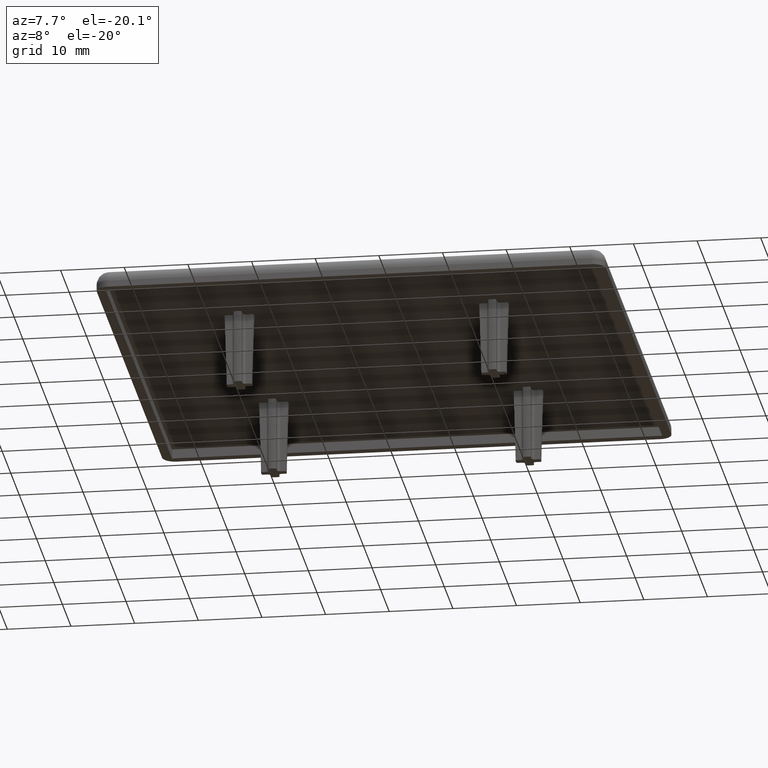
[diagram: clean part render]
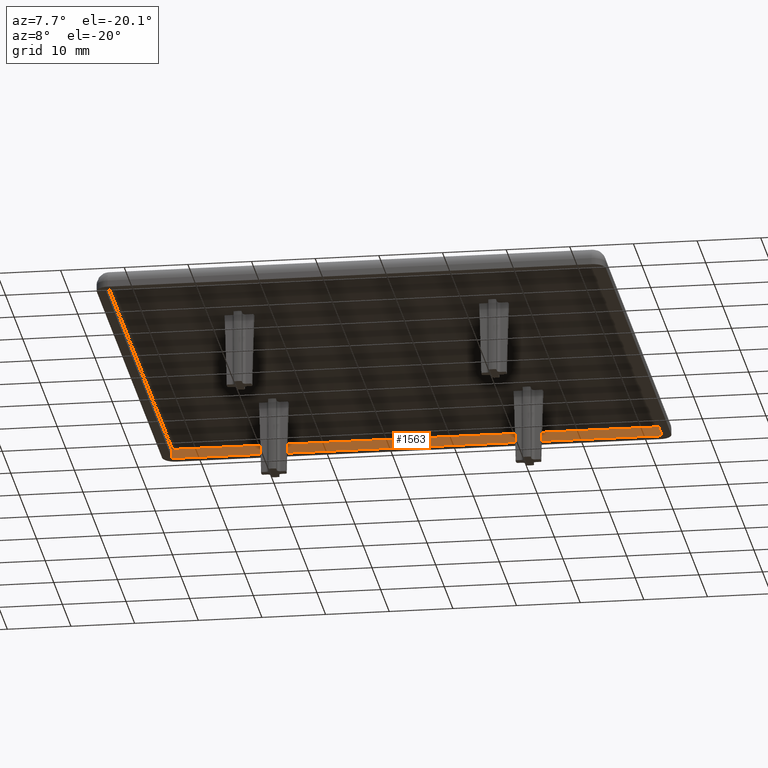
[diagram: same view with one face highlighted and labeled with its STEP entity id]
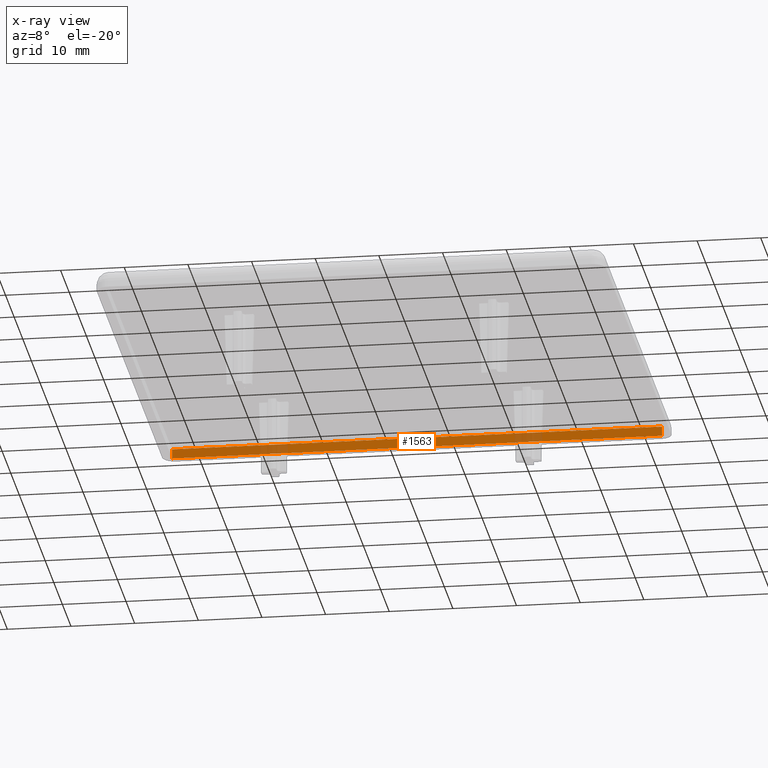
[diagram: x-ray of the same camera — body ghosted, the highlighted face saturated]
A machine part, auxiliary view. The second image highlights one B-rep face of the part: STEP entity #1563.
The next image is the same camera in x-ray: the body ghosted, the highlighted face saturated — about 11% of this face is hidden behind the body in this view.
In plain terms, the highlighted planar face has unit normal (0, -1, 0).
Its self-contained STEP definition (entity closure, byte-faithful):
#117=FACE_OUTER_BOUND('',#213,.T.);
#213=EDGE_LOOP('',(#1167,#1168,#1169,#1170));
#289=LINE('',#2290,#417);
#311=LINE('',#2662,#439);
#313=LINE('',#2666,#441);
#346=LINE('',#2796,#474);
#417=VECTOR('',#1820,77.0000006657);
#439=VECTOR('',#1896,1.5);
#441=VECTOR('',#1900,77.0000006657);
#474=VECTOR('',#1999,1.5);
#629=VERTEX_POINT('',#2287);
#630=VERTEX_POINT('',#2289);
#645=VERTEX_POINT('',#2660);
#646=VERTEX_POINT('',#2664);
#785=EDGE_CURVE('',#629,#630,#289,.T.);
#819=EDGE_CURVE('',#645,#629,#311,.T.);
#821=EDGE_CURVE('',#645,#646,#313,.T.);
#886=EDGE_CURVE('',#646,#630,#346,.T.);
#1167=ORIENTED_EDGE('',*,*,#886,.T.);
#1168=ORIENTED_EDGE('',*,*,#785,.F.);
#1169=ORIENTED_EDGE('',*,*,#819,.F.);
#1170=ORIENTED_EDGE('',*,*,#821,.T.);
#1504=PLANE('',#1700);
#1563=ADVANCED_FACE('',(#117),#1504,.T.);
#1700=AXIS2_PLACEMENT_3D('',#2795,#1997,#1998);
#1820=DIRECTION('',(-1.,0.,0.));
#1896=DIRECTION('',(0.,0.,-1.));
#1900=DIRECTION('',(-1.,0.,0.));
#1997=DIRECTION('center_axis',(0.,-1.,0.));
#1998=DIRECTION('ref_axis',(1.,0.,0.));
#1999=DIRECTION('',(0.,0.,-1.));
#2287=CARTESIAN_POINT('',(38.50000033285,78.50000033269,0.));
#2289=CARTESIAN_POINT('',(-38.50000033285,78.50000033269,0.));
#2290=CARTESIAN_POINT('',(38.50000033285,78.50000033269,0.));
#2660=CARTESIAN_POINT('',(38.50000033285,78.50000033269,1.5));
#2662=CARTESIAN_POINT('',(38.50000033285,78.50000033269,1.5));
#2664=CARTESIAN_POINT('',(-38.50000033285,78.50000033269,1.5));
#2666=CARTESIAN_POINT('',(38.50000033285,78.50000033269,1.5));
#2795=CARTESIAN_POINT('Origin',(-38.50000033285,78.50000033269,0.));
#2796=CARTESIAN_POINT('',(-38.50000033285,78.50000033269,1.5));